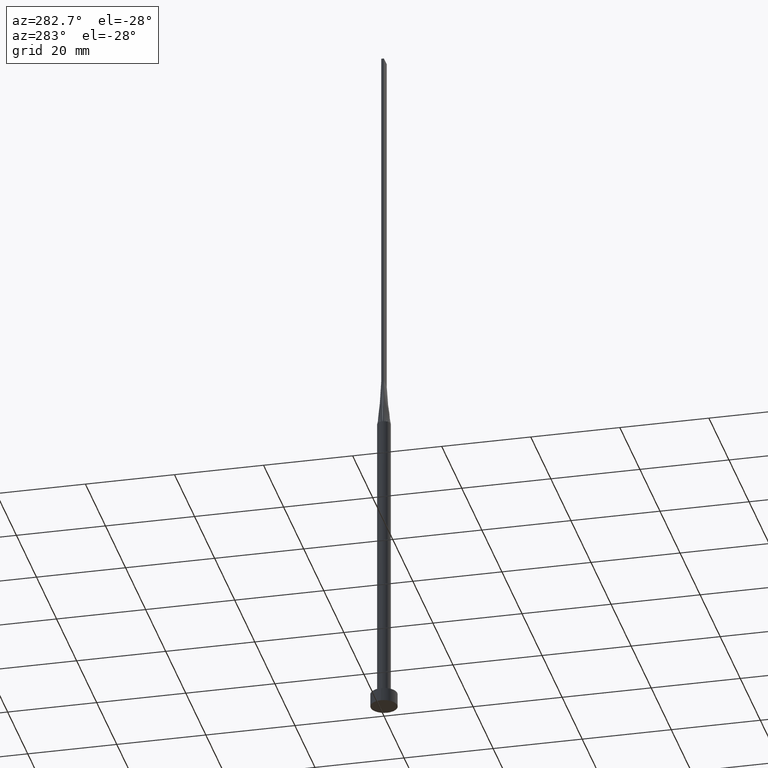
[diagram: clean part render]
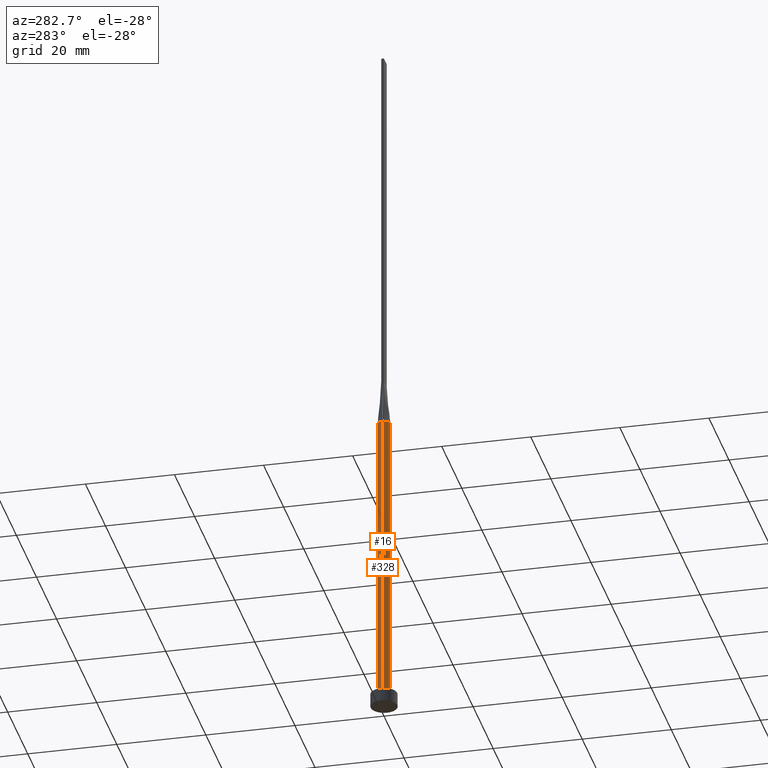
[diagram: same view with one multi-face feature highlighted, each face labeled with its STEP entity id]
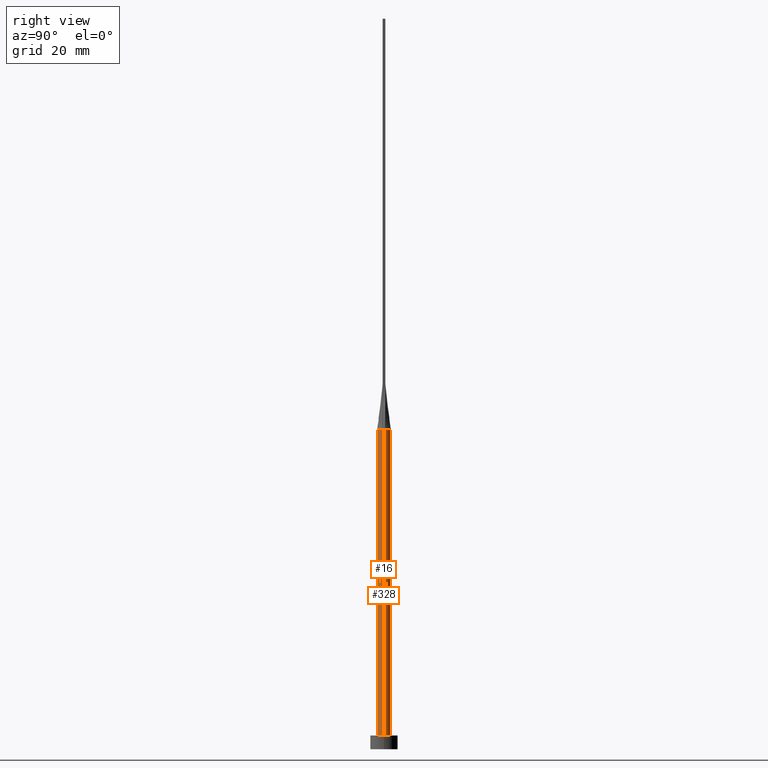
[diagram: same view with one multi-face feature highlighted, each face labeled with its STEP entity id]
A machine part, auxiliary view. The highlighted faces form ONE feature: a constant-radius fillet chain: 2 tangent blend faces with common blend radius 1.5 mm. The faces share edges in the B-rep.
A second angle (right view) of the same feature is appended — it is thin or edge-on in the first view.
Their STEP definitions:
[1] entity #328 (Cylinder):
#3 = AXIS2_PLACEMENT_3D ( 'NONE', #159, #293, #203 ) ;
#25 = VERTEX_POINT ( 'NONE', #525 ) ;
#48 = CARTESIAN_POINT ( 'NONE',  ( 0.000000000000000000, 0.000000000000000000, 70.00000000000000000 ) ) ;
#51 = CARTESIAN_POINT ( 'NONE',  ( -1.466842056764351865, 0.3143233427268645186, 70.00000000000000000 ) ) ;
#52 = AXIS2_PLACEMENT_3D ( 'NONE', #409, #185, #187 ) ;
#62 = ORIENTED_EDGE ( 'NONE', *, *, #179, .T. ) ;
#78 = EDGE_CURVE ( 'NONE', #463, #530, #101, .T. ) ;
#89 = ORIENTED_EDGE ( 'NONE', *, *, #437, .F. ) ;
#98 = CARTESIAN_POINT ( 'NONE',  ( 0.4035854070682468042, 1.457676878506885654, 69.99999999999998579 ) ) ;
#99 = ORIENTED_EDGE ( 'NONE', *, *, #432, .T. ) ;
#101 = CIRCLE ( 'NONE', #279, 1.500000000000000222 ) ;
#143 = CARTESIAN_POINT ( 'NONE',  ( -0.9173979595380679086, 1.199399801402030397, 69.99999999999998579 ) ) ;
#159 = CARTESIAN_POINT ( 'NONE',  ( 0.000000000000000000, 0.000000000000000000, 3.000000000000000000 ) ) ;
#169 = EDGE_LOOP ( 'NONE', ( #360, #99, #62, #575, #89, #524 ) ) ;
#179 = EDGE_CURVE ( 'NONE', #197, #283, #183, .T. ) ;
#183 = CIRCLE ( 'NONE', #3, 1.500000000000000222 ) ;
#185 = DIRECTION ( 'NONE',  ( 0.000000000000000000, 0.000000000000000000, 1.000000000000000000 ) ) ;
#187 = DIRECTION ( 'NONE',  ( 1.000000000000000000, 0.000000000000000000, 0.000000000000000000 ) ) ;
#197 = VERTEX_POINT ( 'NONE', #569 ) ;
#203 = DIRECTION ( 'NONE',  ( 1.000000000000000000, 0.000000000000000000, 0.000000000000000000 ) ) ;
#209 = LINE ( 'NONE', #347, #407 ) ;
#217 = CARTESIAN_POINT ( 'NONE',  ( -1.466842056764351865, 0.3143233427268645186, 70.00000000000000000 ) ) ;
#231 = CARTESIAN_POINT ( 'NONE',  ( 0.9173979595380679086, 1.199399801402031285, 70.00000000000001421 ) ) ;
#235 = CARTESIAN_POINT ( 'NONE',  ( 0.7614511870148451544, 1.306864626778804883, 70.00000000000000000 ) ) ;
#238 = EDGE_CURVE ( 'NONE', #530, #331, #433, .T. ) ;
#252 = CARTESIAN_POINT ( 'NONE',  ( 1.466825456746648992, 0.3143198820638501978, 70.00000000000000000 ) ) ;
#270 = CARTESIAN_POINT ( 'NONE',  ( -0.4035854070682471928, 1.457676878506885432, 70.00000000000000000 ) ) ;
#279 = AXIS2_PLACEMENT_3D ( 'NONE', #397, #573, #480 ) ;
#283 = VERTEX_POINT ( 'NONE', #316 ) ;
#293 = DIRECTION ( 'NONE',  ( 0.000000000000000000, 0.000000000000000000, 1.000000000000000000 ) ) ;
#305 = CIRCLE ( 'NONE', #52, 1.500000000000000222 ) ;
#314 = DIRECTION ( 'NONE',  ( -0.000000000000000000, -0.000000000000000000, -1.000000000000000000 ) ) ;
#316 = CARTESIAN_POINT ( 'NONE',  ( -1.500000000000000222, 0.000000000000000000, 3.000000000000000000 ) ) ;
#317 = DIRECTION ( 'NONE',  ( -0.000000000000000000, -0.000000000000000000, -1.000000000000000000 ) ) ;
#322 = CARTESIAN_POINT ( 'NONE',  ( -1.167251067653078289, 0.9579686032593087708, 70.00000000000000000 ) ) ;
#328 = ADVANCED_FACE ( 'NONE', ( #495 ), #449, .T. ) ;
#331 = VERTEX_POINT ( 'NONE', #217 ) ;
#347 = CARTESIAN_POINT ( 'NONE',  ( -1.500000000000000222, 0.000000000000000000, 70.00000000000000000 ) ) ;
#354 = AXIS2_PLACEMENT_3D ( 'NONE', #48, #314, #496 ) ;
#360 = ORIENTED_EDGE ( 'NONE', *, *, #78, .F. ) ;
#363 = CARTESIAN_POINT ( 'NONE',  ( -0.7614511870148460426, 1.306864626778804661, 70.00000000000000000 ) ) ;
#365 = CARTESIAN_POINT ( 'NONE',  ( -0.2021039475585064971, 1.499999999999999556, 70.00000000000001421 ) ) ;
#397 = CARTESIAN_POINT ( 'NONE',  ( 0.000000000000000000, 0.000000000000000000, 70.00000000000000000 ) ) ;
#402 = CARTESIAN_POINT ( 'NONE',  ( 1.499815225192203672, 3.473831651285826596E-16, 70.00000000000000000 ) ) ;
#404 = LINE ( 'NONE', #487, #561 ) ;
#407 = VECTOR ( 'NONE', #520, 1000.000000000000000 ) ;
#408 = CARTESIAN_POINT ( 'NONE',  ( 0.2021039475585061640, 1.500000000000000222, 70.00000000000001421 ) ) ;
#409 = CARTESIAN_POINT ( 'NONE',  ( 0.000000000000000000, 0.000000000000000000, 70.00000000000000000 ) ) ;
#411 = CARTESIAN_POINT ( 'NONE',  ( -1.261673556793542872, 0.8246322331683846318, 70.00000000000004263 ) ) ;
#432 = EDGE_CURVE ( 'NONE', #463, #197, #404, .T. ) ;
#433 = B_SPLINE_CURVE_WITH_KNOTS ( 'NONE', 3,
 ( #542, #537, #455, #501, #493, #231, #235, #98, #408, #365, #270, #363, #143, #322, #411, #452, #504, #51 ),
 .UNSPECIFIED., .F., .F.,
 ( 4, 2, 2, 2, 2, 2, 2, 2, 4 ),
 ( 0.000000000000000000, 0.1249999999999999445, 0.2499999999999998890, 0.3749999999999998890, 0.4999999999999998890, 0.6249999999999998890, 0.7500000000000000000, 0.8749999999999998890, 1.000000000000000000 ),
 .UNSPECIFIED. ) ;
#437 = EDGE_CURVE ( 'NONE', #331, #25, #305, .T. ) ;
#449 = CYLINDRICAL_SURFACE ( 'NONE', #354, 1.500000000000000222 ) ;
#452 = CARTESIAN_POINT ( 'NONE',  ( -1.398339371956843102, 0.5625704264602656712, 69.99999999999998579 ) ) ;
#455 = CARTESIAN_POINT ( 'NONE',  ( 1.398339371956842880, 0.5625704264602660043, 70.00000000000001421 ) ) ;
#463 = VERTEX_POINT ( 'NONE', #402 ) ;
#480 = DIRECTION ( 'NONE',  ( 1.000000000000000000, 0.000000000000000000, 0.000000000000000000 ) ) ;
#487 = CARTESIAN_POINT ( 'NONE',  ( 1.500000000000000222, 1.836970198721030181E-16, 70.00000000000000000 ) ) ;
#493 = CARTESIAN_POINT ( 'NONE',  ( 1.167251067653077401, 0.9579686032593092149, 70.00000000000000000 ) ) ;
#495 = FACE_OUTER_BOUND ( 'NONE', #169, .T. ) ;
#496 = DIRECTION ( 'NONE',  ( -1.000000000000000000, 0.000000000000000000, 0.000000000000000000 ) ) ;
#501 = CARTESIAN_POINT ( 'NONE',  ( 1.261673556793541540, 0.8246322331683844098, 70.00000000000000000 ) ) ;
#504 = CARTESIAN_POINT ( 'NONE',  ( -1.441093865018553410, 0.4338058282182611913, 69.99999999999998579 ) ) ;
#520 = DIRECTION ( 'NONE',  ( -0.000000000000000000, -0.000000000000000000, -1.000000000000000000 ) ) ;
#524 = ORIENTED_EDGE ( 'NONE', *, *, #238, .F. ) ;
#525 = CARTESIAN_POINT ( 'NONE',  ( -1.499815225192203672, -3.718617114388451945E-16, 70.00000000000000000 ) ) ;
#530 = VERTEX_POINT ( 'NONE', #252 ) ;
#534 = EDGE_CURVE ( 'NONE', #25, #283, #209, .T. ) ;
#537 = CARTESIAN_POINT ( 'NONE',  ( 1.441093865018553410, 0.4338058282182615244, 69.99999999999998579 ) ) ;
#542 = CARTESIAN_POINT ( 'NONE',  ( 1.466825456746648992, 0.3143198820638501978, 70.00000000000000000 ) ) ;
#561 = VECTOR ( 'NONE', #317, 1000.000000000000000 ) ;
#569 = CARTESIAN_POINT ( 'NONE',  ( 1.500000000000000222, 1.836970198721030181E-16, 3.000000000000000000 ) ) ;
#573 = DIRECTION ( 'NONE',  ( 0.000000000000000000, 0.000000000000000000, 1.000000000000000000 ) ) ;
#575 = ORIENTED_EDGE ( 'NONE', *, *, #534, .F. ) ;
[2] entity #16 (Cylinder):
#2 = CARTESIAN_POINT ( 'NONE',  ( 0.000000000000000000, 0.000000000000000000, 70.00000000000000000 ) ) ;
#5 = CARTESIAN_POINT ( 'NONE',  ( 1.466854622690809462, -0.3143260906982852099, 70.00000000000000000 ) ) ;
#7 = DIRECTION ( 'NONE',  ( 1.000000000000000000, 0.000000000000000000, 0.000000000000000000 ) ) ;
#16 = ADVANCED_FACE ( 'NONE', ( #35 ), #576, .T. ) ;
#25 = VERTEX_POINT ( 'NONE', #525 ) ;
#29 = AXIS2_PLACEMENT_3D ( 'NONE', #302, #532, #257 ) ;
#31 = DIRECTION ( 'NONE',  ( 0.000000000000000000, 0.000000000000000000, 1.000000000000000000 ) ) ;
#34 = CIRCLE ( 'NONE', #508, 1.500000000000000222 ) ;
#35 = FACE_OUTER_BOUND ( 'NONE', #242, .T. ) ;
#41 = ORIENTED_EDGE ( 'NONE', *, *, #192, .T. ) ;
#44 = ORIENTED_EDGE ( 'NONE', *, *, #400, .F. ) ;
#47 = CARTESIAN_POINT ( 'NONE',  ( 0.000000000000000000, 0.000000000000000000, 70.00000000000000000 ) ) ;
#71 = CARTESIAN_POINT ( 'NONE',  ( 0.000000000000000000, 0.000000000000000000, 3.000000000000000000 ) ) ;
#141 = DIRECTION ( 'NONE',  ( 1.000000000000000000, 3.552713678800500929E-15, 0.000000000000000000 ) ) ;
#184 = DIRECTION ( 'NONE',  ( 0.000000000000000000, 0.000000000000000000, 1.000000000000000000 ) ) ;
#192 = EDGE_CURVE ( 'NONE', #283, #197, #538, .T. ) ;
#197 = VERTEX_POINT ( 'NONE', #569 ) ;
#209 = LINE ( 'NONE', #347, #407 ) ;
#214 = VERTEX_POINT ( 'NONE', #253 ) ;
#224 = DIRECTION ( 'NONE',  ( 1.000000000000000000, 0.000000000000000000, 0.000000000000000000 ) ) ;
#232 = EDGE_CURVE ( 'NONE', #25, #214, #34, .T. ) ;
#242 = EDGE_LOOP ( 'NONE', ( #369, #419, #44, #505, #581, #41 ) ) ;
#253 = CARTESIAN_POINT ( 'NONE',  ( -1.466837926445876628, -0.3143226152917824034, 70.00000000000000000 ) ) ;
#257 = DIRECTION ( 'NONE',  ( -1.000000000000000000, 0.000000000000000000, 0.000000000000000000 ) ) ;
#282 = AXIS2_PLACEMENT_3D ( 'NONE', #71, #31, #300 ) ;
#283 = VERTEX_POINT ( 'NONE', #316 ) ;
#295 = EDGE_CURVE ( 'NONE', #426, #463, #577, .T. ) ;
#300 = DIRECTION ( 'NONE',  ( 1.000000000000000000, 0.000000000000000000, 0.000000000000000000 ) ) ;
#302 = CARTESIAN_POINT ( 'NONE',  ( 0.000000000000000000, 0.000000000000000000, 70.00000000000000000 ) ) ;
#316 = CARTESIAN_POINT ( 'NONE',  ( -1.500000000000000222, 0.000000000000000000, 3.000000000000000000 ) ) ;
#317 = DIRECTION ( 'NONE',  ( -0.000000000000000000, -0.000000000000000000, -1.000000000000000000 ) ) ;
#323 = AXIS2_PLACEMENT_3D ( 'NONE', #2, #540, #141 ) ;
#326 = CARTESIAN_POINT ( 'NONE',  ( 0.000000000000000000, 0.000000000000000000, 70.00000000000000000 ) ) ;
#347 = CARTESIAN_POINT ( 'NONE',  ( -1.500000000000000222, 0.000000000000000000, 70.00000000000000000 ) ) ;
#369 = ORIENTED_EDGE ( 'NONE', *, *, #432, .F. ) ;
#400 = EDGE_CURVE ( 'NONE', #214, #426, #482, .T. ) ;
#402 = CARTESIAN_POINT ( 'NONE',  ( 1.499815225192203672, 3.473831651285826596E-16, 70.00000000000000000 ) ) ;
#404 = LINE ( 'NONE', #487, #561 ) ;
#407 = VECTOR ( 'NONE', #520, 1000.000000000000000 ) ;
#419 = ORIENTED_EDGE ( 'NONE', *, *, #295, .F. ) ;
#426 = VERTEX_POINT ( 'NONE', #5 ) ;
#432 = EDGE_CURVE ( 'NONE', #463, #197, #404, .T. ) ;
#453 = AXIS2_PLACEMENT_3D ( 'NONE', #47, #539, #7 ) ;
#463 = VERTEX_POINT ( 'NONE', #402 ) ;
#482 = CIRCLE ( 'NONE', #453, 1.500000000000000222 ) ;
#487 = CARTESIAN_POINT ( 'NONE',  ( 1.500000000000000222, 1.836970198721030181E-16, 70.00000000000000000 ) ) ;
#505 = ORIENTED_EDGE ( 'NONE', *, *, #232, .F. ) ;
#508 = AXIS2_PLACEMENT_3D ( 'NONE', #326, #184, #224 ) ;
#520 = DIRECTION ( 'NONE',  ( -0.000000000000000000, -0.000000000000000000, -1.000000000000000000 ) ) ;
#525 = CARTESIAN_POINT ( 'NONE',  ( -1.499815225192203672, -3.718617114388451945E-16, 70.00000000000000000 ) ) ;
#532 = DIRECTION ( 'NONE',  ( -0.000000000000000000, -0.000000000000000000, -1.000000000000000000 ) ) ;
#534 = EDGE_CURVE ( 'NONE', #25, #283, #209, .T. ) ;
#538 = CIRCLE ( 'NONE', #282, 1.500000000000000222 ) ;
#539 = DIRECTION ( 'NONE',  ( 0.000000000000000000, 0.000000000000000000, 1.000000000000000000 ) ) ;
#540 = DIRECTION ( 'NONE',  ( 0.000000000000000000, 0.000000000000000000, 1.000000000000000000 ) ) ;
#561 = VECTOR ( 'NONE', #317, 1000.000000000000000 ) ;
#569 = CARTESIAN_POINT ( 'NONE',  ( 1.500000000000000222, 1.836970198721030181E-16, 3.000000000000000000 ) ) ;
#576 = CYLINDRICAL_SURFACE ( 'NONE', #29, 1.500000000000000222 ) ;
#577 = CIRCLE ( 'NONE', #323, 1.500000000000000222 ) ;
#581 = ORIENTED_EDGE ( 'NONE', *, *, #534, .T. ) ;